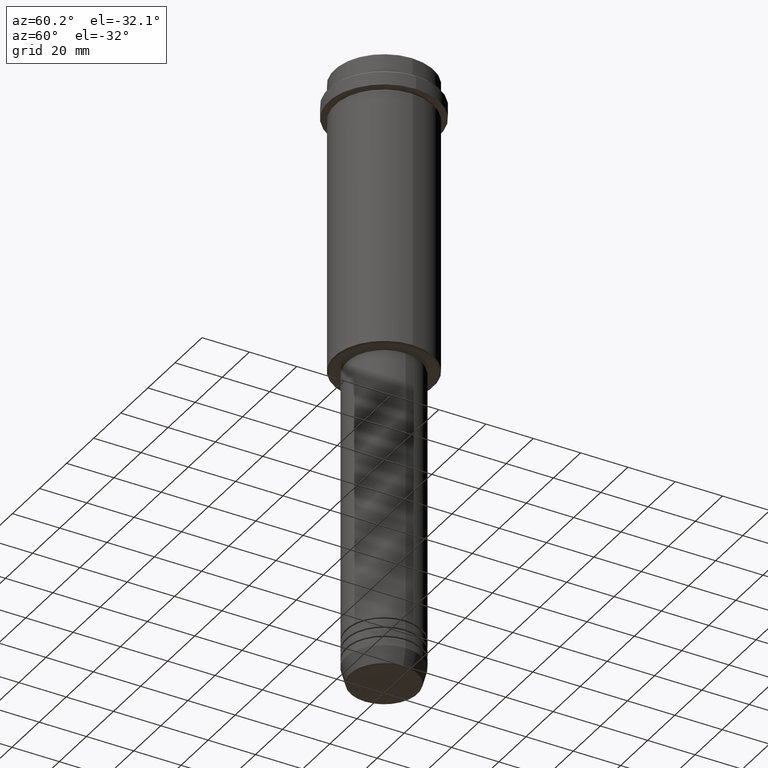
[diagram: clean part render]
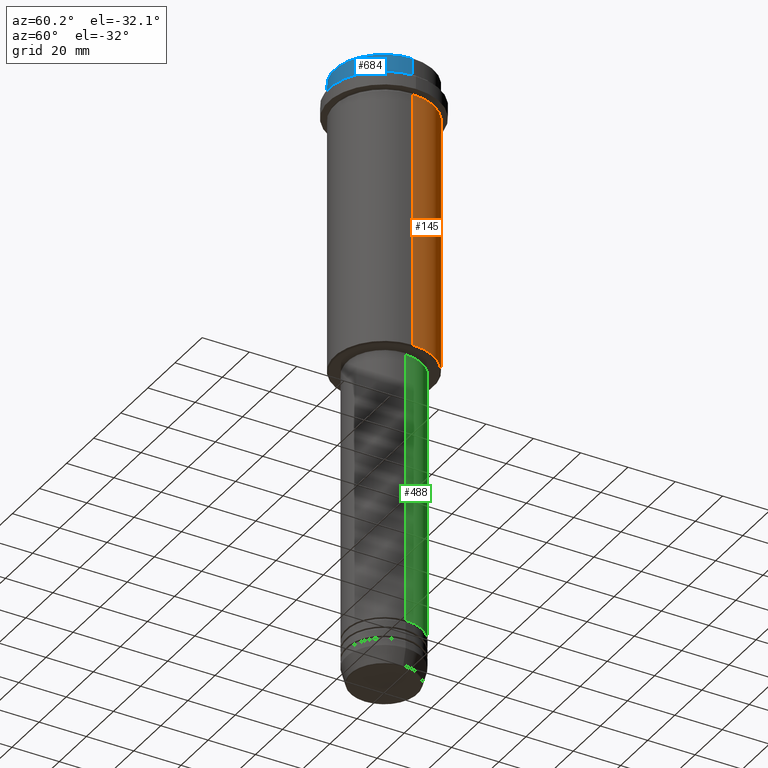
[diagram: same view with three faces highlighted in distinct colors, each labeled with its STEP entity id]
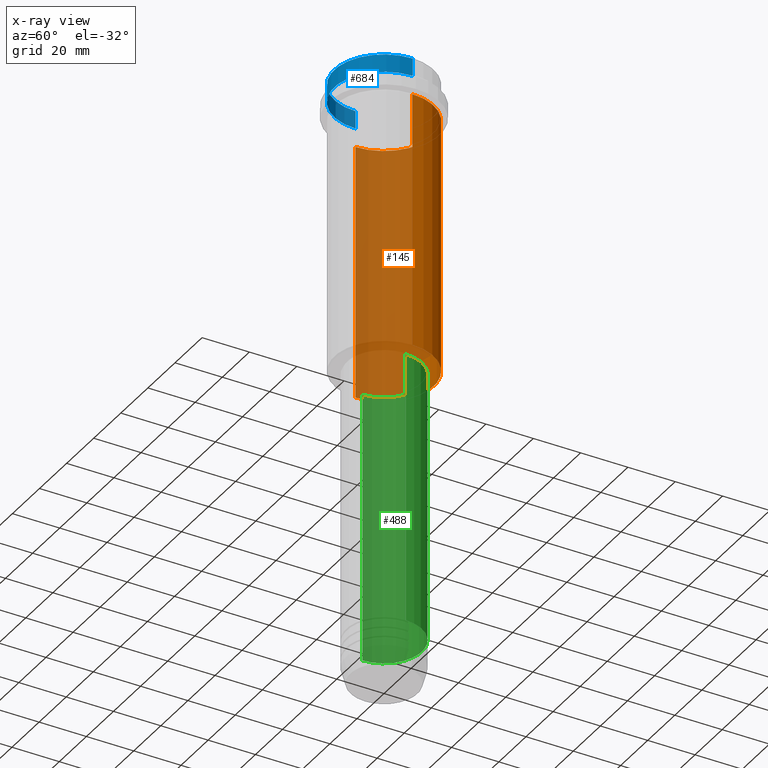
[diagram: x-ray of the same camera — body ghosted, the three highlighted faces saturated]
A machine part, auxiliary view with three faces highlighted in distinct colors.
The next image is the same camera in x-ray (body ghosted, the three faces saturated) — at least one of them is partly hidden behind the body in this view.
Their STEP definitions:

[orange] entity #145 — the highlighted cylindrical surface (partial cylindrical patch) has radius 21 mm, axis along (-0, -0, 1).
#51 = LINE ( 'NONE', #1082, #813 ) ;
#52 = CARTESIAN_POINT ( 'NONE',  ( 20.99999999999999645, 0.000000000000000000, -16.00000000000000355 ) ) ;
#79 = ORIENTED_EDGE ( 'NONE', *, *, #392, .F. ) ;
#145 = ADVANCED_FACE ( 'NONE', ( #1378 ), #1161, .T. ) ;
#199 = AXIS2_PLACEMENT_3D ( 'NONE', #1042, #1050, #625 ) ;
#238 = AXIS2_PLACEMENT_3D ( 'NONE', #1006, #340, #1101 ) ;
#246 = ORIENTED_EDGE ( 'NONE', *, *, #1208, .T. ) ;
#291 = EDGE_CURVE ( 'NONE', #351, #1046, #51, .T. ) ;
#297 = CARTESIAN_POINT ( 'NONE',  ( 20.99999999999999645, 0.000000000000000000, -124.4999999999999432 ) ) ;
#314 = VERTEX_POINT ( 'NONE', #52 ) ;
#321 = EDGE_CURVE ( 'NONE', #314, #1046, #342, .T. ) ;
#340 = DIRECTION ( 'NONE',  ( -0.000000000000000000, -0.000000000000000000, 1.000000000000000000 ) ) ;
#342 = CIRCLE ( 'NONE', #238, 20.99999999999999645 ) ;
#351 = VERTEX_POINT ( 'NONE', #1273 ) ;
#364 = CARTESIAN_POINT ( 'NONE',  ( -20.99999999999999645, 2.571758278209441267E-15, -16.00000000000000355 ) ) ;
#392 = EDGE_CURVE ( 'NONE', #605, #314, #925, .T. ) ;
#467 = ORIENTED_EDGE ( 'NONE', *, *, #291, .T. ) ;
#472 = ORIENTED_EDGE ( 'NONE', *, *, #321, .F. ) ;
#518 = CIRCLE ( 'NONE', #199, 20.99999999999999645 ) ;
#605 = VERTEX_POINT ( 'NONE', #297 ) ;
#617 = DIRECTION ( 'NONE',  ( 1.000000000000000000, 0.000000000000000000, 0.000000000000000000 ) ) ;
#625 = DIRECTION ( 'NONE',  ( -1.000000000000000000, 0.000000000000000000, 0.000000000000000000 ) ) ;
#734 = EDGE_LOOP ( 'NONE', ( #246, #467, #472, #79 ) ) ;
#813 = VECTOR ( 'NONE', #970, 1000.000000000000000 ) ;
#925 = LINE ( 'NONE', #1354, #1364 ) ;
#970 = DIRECTION ( 'NONE',  ( -0.000000000000000000, -0.000000000000000000, 1.000000000000000000 ) ) ;
#1006 = CARTESIAN_POINT ( 'NONE',  ( 0.000000000000000000, 0.000000000000000000, -16.00000000000000355 ) ) ;
#1042 = CARTESIAN_POINT ( 'NONE',  ( 0.000000000000000000, 0.000000000000000000, -124.4999999999999432 ) ) ;
#1046 = VERTEX_POINT ( 'NONE', #364 ) ;
#1050 = DIRECTION ( 'NONE',  ( -0.000000000000000000, -0.000000000000000000, 1.000000000000000000 ) ) ;
#1060 = CARTESIAN_POINT ( 'NONE',  ( 0.000000000000000000, 0.000000000000000000, 0.000000000000000000 ) ) ;
#1070 = DIRECTION ( 'NONE',  ( -0.000000000000000000, -0.000000000000000000, 1.000000000000000000 ) ) ;
#1082 = CARTESIAN_POINT ( 'NONE',  ( -20.99999999999999645, 2.571758278209441267E-15, 0.000000000000000000 ) ) ;
#1101 = DIRECTION ( 'NONE',  ( 1.000000000000000000, 0.000000000000000000, 0.000000000000000000 ) ) ;
#1161 = CYLINDRICAL_SURFACE ( 'NONE', #1391, 20.99999999999999645 ) ;
#1174 = DIRECTION ( 'NONE',  ( -0.000000000000000000, -0.000000000000000000, 1.000000000000000000 ) ) ;
#1208 = EDGE_CURVE ( 'NONE', #605, #351, #518, .T. ) ;
#1273 = CARTESIAN_POINT ( 'NONE',  ( -20.99999999999999645, 2.571758278209441267E-15, -124.4999999999999432 ) ) ;
#1354 = CARTESIAN_POINT ( 'NONE',  ( 20.99999999999999645, 0.000000000000000000, 0.000000000000000000 ) ) ;
#1364 = VECTOR ( 'NONE', #1070, 1000.000000000000000 ) ;
#1378 = FACE_OUTER_BOUND ( 'NONE', #734, .T. ) ;
#1391 = AXIS2_PLACEMENT_3D ( 'NONE', #1060, #1174, #617 ) ;

[blue] entity #684 — the highlighted cylindrical surface (partial cylindrical patch) has radius 21 mm, axis along (-0, -0, 1).
#18 = CARTESIAN_POINT ( 'NONE',  ( 0.000000000000000000, 0.000000000000000000, 0.000000000000000000 ) ) ;
#64 = CARTESIAN_POINT ( 'NONE',  ( 20.99999999999999645, 0.000000000000000000, 0.000000000000000000 ) ) ;
#82 = AXIS2_PLACEMENT_3D ( 'NONE', #368, #1260, #263 ) ;
#114 = CYLINDRICAL_SURFACE ( 'NONE', #1252, 20.99999999999999645 ) ;
#116 = EDGE_CURVE ( 'NONE', #1351, #1224, #799, .T. ) ;
#160 = LINE ( 'NONE', #64, #1318 ) ;
#203 = ORIENTED_EDGE ( 'NONE', *, *, #116, .F. ) ;
#224 = EDGE_CURVE ( 'NONE', #1351, #1317, #258, .T. ) ;
#258 = CIRCLE ( 'NONE', #82, 20.99999999999999645 ) ;
#259 = DIRECTION ( 'NONE',  ( 0.000000000000000000, 0.000000000000000000, -1.000000000000000000 ) ) ;
#263 = DIRECTION ( 'NONE',  ( 1.000000000000000000, 0.000000000000000000, 0.000000000000000000 ) ) ;
#272 = DIRECTION ( 'NONE',  ( -0.000000000000000000, -0.000000000000000000, 1.000000000000000000 ) ) ;
#281 = VERTEX_POINT ( 'NONE', #428 ) ;
#290 = ORIENTED_EDGE ( 'NONE', *, *, #224, .T. ) ;
#368 = CARTESIAN_POINT ( 'NONE',  ( 0.000000000000000000, 0.000000000000000000, -7.999999999999998224 ) ) ;
#428 = CARTESIAN_POINT ( 'NONE',  ( 20.99999999999999645, 0.000000000000000000, -0.4999999999999241163 ) ) ;
#452 = EDGE_CURVE ( 'NONE', #281, #1224, #513, .T. ) ;
#487 = CARTESIAN_POINT ( 'NONE',  ( -20.99999999999999645, 2.571758278209441267E-15, 0.000000000000000000 ) ) ;
#489 = ORIENTED_EDGE ( 'NONE', *, *, #452, .T. ) ;
#513 = CIRCLE ( 'NONE', #585, 20.99999999999999645 ) ;
#585 = AXIS2_PLACEMENT_3D ( 'NONE', #804, #259, #699 ) ;
#684 = ADVANCED_FACE ( 'NONE', ( #998 ), #114, .T. ) ;
#699 = DIRECTION ( 'NONE',  ( 1.000000000000000000, 0.000000000000000000, 0.000000000000000000 ) ) ;
#700 = DIRECTION ( 'NONE',  ( -0.000000000000000000, -0.000000000000000000, 1.000000000000000000 ) ) ;
#773 = DIRECTION ( 'NONE',  ( 1.000000000000000000, 0.000000000000000000, 0.000000000000000000 ) ) ;
#799 = LINE ( 'NONE', #487, #1021 ) ;
#801 = ORIENTED_EDGE ( 'NONE', *, *, #1218, .T. ) ;
#804 = CARTESIAN_POINT ( 'NONE',  ( 0.000000000000000000, 0.000000000000000000, -0.4999999999999241163 ) ) ;
#998 = FACE_OUTER_BOUND ( 'NONE', #1034, .T. ) ;
#1021 = VECTOR ( 'NONE', #700, 1000.000000000000000 ) ;
#1034 = EDGE_LOOP ( 'NONE', ( #203, #290, #801, #489 ) ) ;
#1175 = CARTESIAN_POINT ( 'NONE',  ( -20.99999999999999645, 2.571758278209441267E-15, -7.999999999999998224 ) ) ;
#1218 = EDGE_CURVE ( 'NONE', #1317, #281, #160, .T. ) ;
#1224 = VERTEX_POINT ( 'NONE', #1379 ) ;
#1252 = AXIS2_PLACEMENT_3D ( 'NONE', #18, #1316, #773 ) ;
#1260 = DIRECTION ( 'NONE',  ( -0.000000000000000000, -0.000000000000000000, 1.000000000000000000 ) ) ;
#1265 = CARTESIAN_POINT ( 'NONE',  ( 20.99999999999999645, 0.000000000000000000, -7.999999999999998224 ) ) ;
#1316 = DIRECTION ( 'NONE',  ( -0.000000000000000000, -0.000000000000000000, 1.000000000000000000 ) ) ;
#1317 = VERTEX_POINT ( 'NONE', #1265 ) ;
#1318 = VECTOR ( 'NONE', #272, 1000.000000000000000 ) ;
#1351 = VERTEX_POINT ( 'NONE', #1175 ) ;
#1379 = CARTESIAN_POINT ( 'NONE',  ( -20.99999999999999645, 2.571758278209441267E-15, -0.4999999999999241163 ) ) ;

[green] entity #488 — the highlighted cylindrical surface (partial cylindrical patch) has radius 16 mm, axis along (-0, -0, 1).
#20 = CIRCLE ( 'NONE', #1212, 16.00000000000000000 ) ;
#23 = DIRECTION ( 'NONE',  ( -0.000000000000000000, -0.000000000000000000, 1.000000000000000000 ) ) ;
#32 = DIRECTION ( 'NONE',  ( -0.000000000000000000, -0.000000000000000000, 1.000000000000000000 ) ) ;
#37 = EDGE_CURVE ( 'NONE', #724, #1385, #746, .T. ) ;
#80 = EDGE_CURVE ( 'NONE', #964, #1335, #688, .T. ) ;
#94 = DIRECTION ( 'NONE',  ( -0.000000000000000000, -0.000000000000000000, 1.000000000000000000 ) ) ;
#117 = ORIENTED_EDGE ( 'NONE', *, *, #1043, .T. ) ;
#316 = VECTOR ( 'NONE', #94, 1000.000000000000000 ) ;
#329 = CARTESIAN_POINT ( 'NONE',  ( 0.000000000000000000, 0.000000000000000000, -240.9999999999999147 ) ) ;
#362 = VECTOR ( 'NONE', #449, 1000.000000000000000 ) ;
#449 = DIRECTION ( 'NONE',  ( -0.000000000000000000, -0.000000000000000000, 1.000000000000000000 ) ) ;
#455 = EDGE_LOOP ( 'NONE', ( #117, #660, #1036, #940 ) ) ;
#488 = ADVANCED_FACE ( 'NONE', ( #622 ), #496, .T. ) ;
#496 = CYLINDRICAL_SURFACE ( 'NONE', #1134, 16.00000000000000000 ) ;
#529 = DIRECTION ( 'NONE',  ( -0.000000000000000000, -0.000000000000000000, 1.000000000000000000 ) ) ;
#622 = FACE_OUTER_BOUND ( 'NONE', #455, .T. ) ;
#660 = ORIENTED_EDGE ( 'NONE', *, *, #80, .T. ) ;
#688 = LINE ( 'NONE', #1118, #362 ) ;
#709 = CARTESIAN_POINT ( 'NONE',  ( -16.00000000000000355, 1.959434878635765526E-15, -126.0000000000000000 ) ) ;
#724 = VERTEX_POINT ( 'NONE', #888 ) ;
#725 = CARTESIAN_POINT ( 'NONE',  ( -16.00000000000000000, 1.959434878635765131E-15, -240.9999999999999147 ) ) ;
#745 = CARTESIAN_POINT ( 'NONE',  ( 16.00000000000000355, 0.000000000000000000, -126.0000000000000000 ) ) ;
#746 = LINE ( 'NONE', #1087, #316 ) ;
#872 = DIRECTION ( 'NONE',  ( 1.000000000000000000, 0.000000000000000000, 0.000000000000000000 ) ) ;
#888 = CARTESIAN_POINT ( 'NONE',  ( 16.00000000000000000, 0.000000000000000000, -240.9999999999999147 ) ) ;
#890 = DIRECTION ( 'NONE',  ( 1.000000000000000000, 0.000000000000000000, 0.000000000000000000 ) ) ;
#938 = CARTESIAN_POINT ( 'NONE',  ( 0.000000000000000000, 0.000000000000000000, 0.000000000000000000 ) ) ;
#940 = ORIENTED_EDGE ( 'NONE', *, *, #37, .F. ) ;
#964 = VERTEX_POINT ( 'NONE', #725 ) ;
#1036 = ORIENTED_EDGE ( 'NONE', *, *, #1157, .F. ) ;
#1043 = EDGE_CURVE ( 'NONE', #724, #964, #20, .T. ) ;
#1087 = CARTESIAN_POINT ( 'NONE',  ( 16.00000000000000000, 0.000000000000000000, 0.000000000000000000 ) ) ;
#1109 = CIRCLE ( 'NONE', #1367, 16.00000000000000355 ) ;
#1118 = CARTESIAN_POINT ( 'NONE',  ( -16.00000000000000000, 1.959434878635765131E-15, 0.000000000000000000 ) ) ;
#1134 = AXIS2_PLACEMENT_3D ( 'NONE', #938, #529, #872 ) ;
#1137 = CARTESIAN_POINT ( 'NONE',  ( 0.000000000000000000, 0.000000000000000000, -126.0000000000000000 ) ) ;
#1157 = EDGE_CURVE ( 'NONE', #1385, #1335, #1109, .T. ) ;
#1212 = AXIS2_PLACEMENT_3D ( 'NONE', #329, #23, #890 ) ;
#1234 = DIRECTION ( 'NONE',  ( 1.000000000000000000, 0.000000000000000000, 0.000000000000000000 ) ) ;
#1335 = VERTEX_POINT ( 'NONE', #709 ) ;
#1367 = AXIS2_PLACEMENT_3D ( 'NONE', #1137, #32, #1234 ) ;
#1385 = VERTEX_POINT ( 'NONE', #745 ) ;